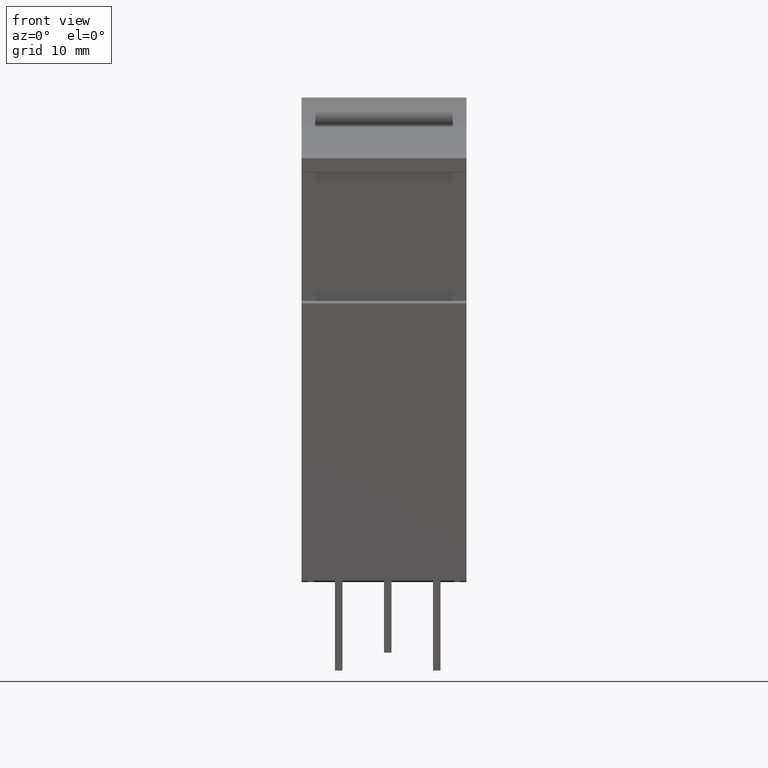
[diagram: clean part render]
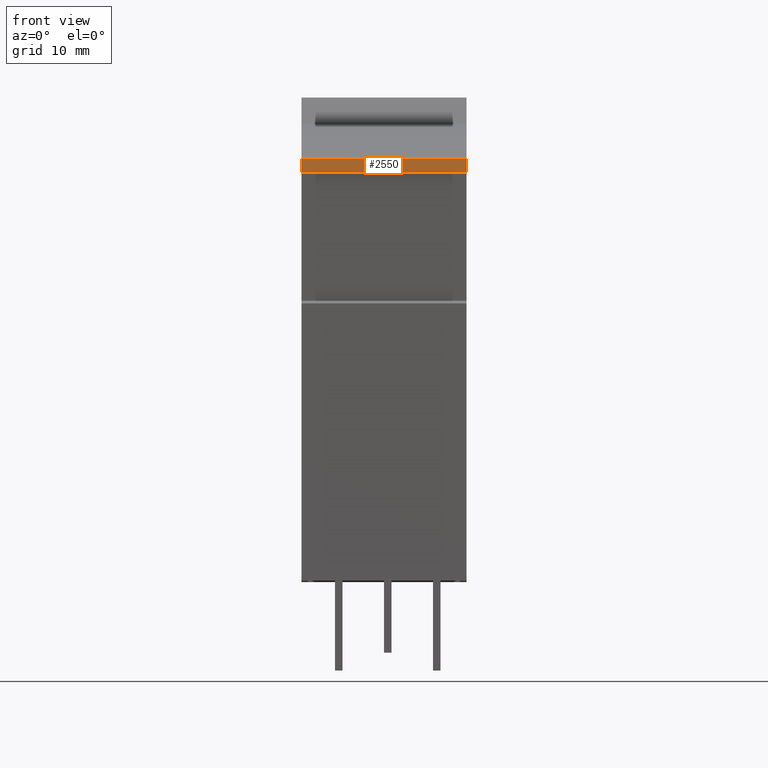
[diagram: same view with one face highlighted and labeled with its STEP entity id]
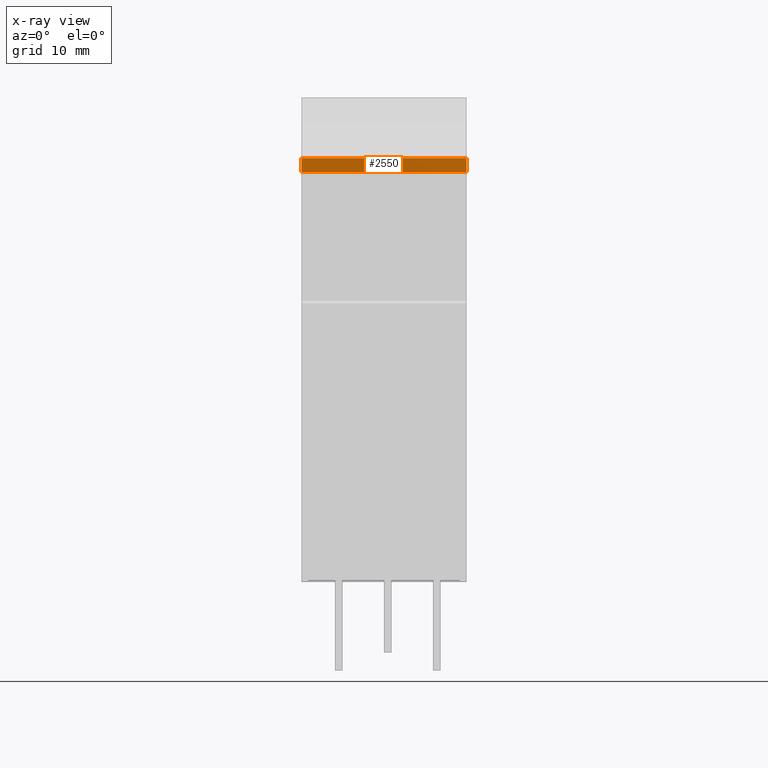
[diagram: x-ray of the same camera — body ghosted, the highlighted face saturated]
A machine part, front view. The second image highlights one B-rep face of the part: STEP entity #2550.
The next image is the same camera in x-ray: the body ghosted, the highlighted face saturated — about 0% of this face is hidden behind the body in this view.
In plain terms, the highlighted planar face has unit normal (-0, 1, -0.0035).
Its self-contained STEP definition (entity closure, byte-faithful):
#1650=CARTESIAN_POINT('',(-37.0195857677472,60.0337018158729,
18.5305241959885));
#1660=VERTEX_POINT('',#1650);
#1690=CARTESIAN_POINT('',(-37.3047043053125,-21.6464107505433,
18.5305241959885));
#1700=DIRECTION('',(-0.00349065141522352,-0.99999390765779,
-1.79919843916959E-23));
#1710=VECTOR('',#1700,1.);
#1720=LINE('',#1690,#1710);
#1730=CARTESIAN_POINT('',(-37.0247751824324,58.5470500560235,
18.5305241959885));
#1740=VERTEX_POINT('',#1730);
#1750=EDGE_CURVE('',#1660,#1740,#1720,.T.);
#2250=CARTESIAN_POINT('',(-37.0205634510163,59.7536173283705,
21.4305241959885));
#2260=DIRECTION('',(0.99999390765779,-0.00349065141522352,
1.03086371928783E-20));
#2270=DIRECTION('',(0.00349065141522352,0.99999390765779,
1.79919843916959E-23));
#2280=AXIS2_PLACEMENT_3D('',#2250,#2260,#2270);
#2290=PLANE('',#2280);
#2300=ORIENTED_EDGE('',*,*,#1750,.T.);
#2310=CARTESIAN_POINT('',(-37.0195857677472,60.0337018158729,
21.4305241959885));
#2320=DIRECTION('',(1.03086371928786E-20,-1.79919842279765E-23,-1.));
#2330=VECTOR('',#2320,1.);
#2340=LINE('',#2310,#2330);
#2350=CARTESIAN_POINT('',(-37.0195857677472,60.0337018158729,
36.0306384267959));
#2360=VERTEX_POINT('',#2350);
#2370=EDGE_CURVE('',#2360,#1660,#2340,.T.);
#2380=ORIENTED_EDGE('',*,*,#2370,.T.);
#2390=CARTESIAN_POINT('',(-37.3047043053125,-21.6464107505433,
36.0306384267959));
#2400=DIRECTION('',(0.00349065141522352,0.99999390765779,
1.79919843916959E-23));
#2410=VECTOR('',#2400,1.);
#2420=LINE('',#2390,#2410);
#2430=CARTESIAN_POINT('',(-37.0247751824324,58.5470500560234,
36.0306384267959));
#2440=VERTEX_POINT('',#2430);
#2450=EDGE_CURVE('',#2440,#2360,#2420,.T.);
#2460=ORIENTED_EDGE('',*,*,#2450,.T.);
#2470=CARTESIAN_POINT('',(-37.0247751824324,58.5470500560235,
-15.1194758041039));
#2480=DIRECTION('',(1.03086371928786E-20,-1.79919842279765E-23,-1.));
#2490=VECTOR('',#2480,1.);
#2500=LINE('',#2470,#2490);
#2510=EDGE_CURVE('',#2440,#1740,#2500,.T.);
#2520=ORIENTED_EDGE('',*,*,#2510,.F.);
#2530=EDGE_LOOP('',(#2520,#2460,#2380,#2300));
#2540=FACE_OUTER_BOUND('',#2530,.T.);
#2550=ADVANCED_FACE('',(#2540),#2290,.F.);